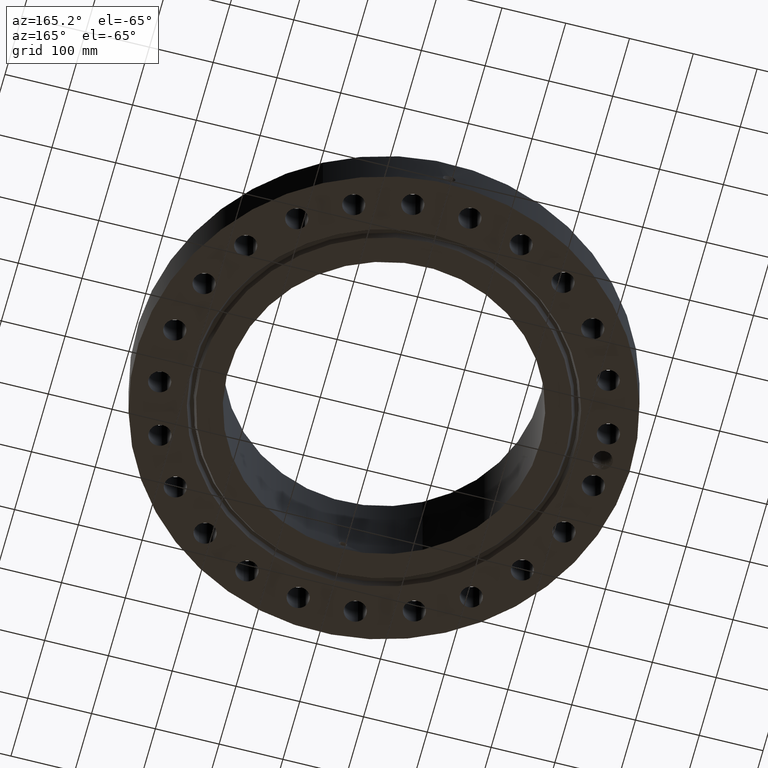
[diagram: clean part render]
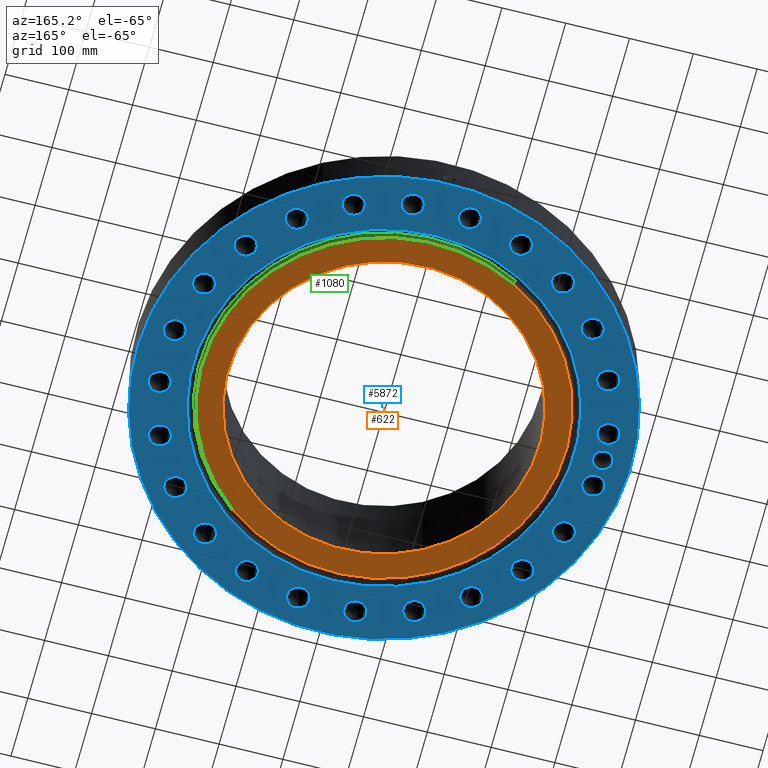
[diagram: same view with three faces highlighted in distinct colors, each labeled with its STEP entity id]
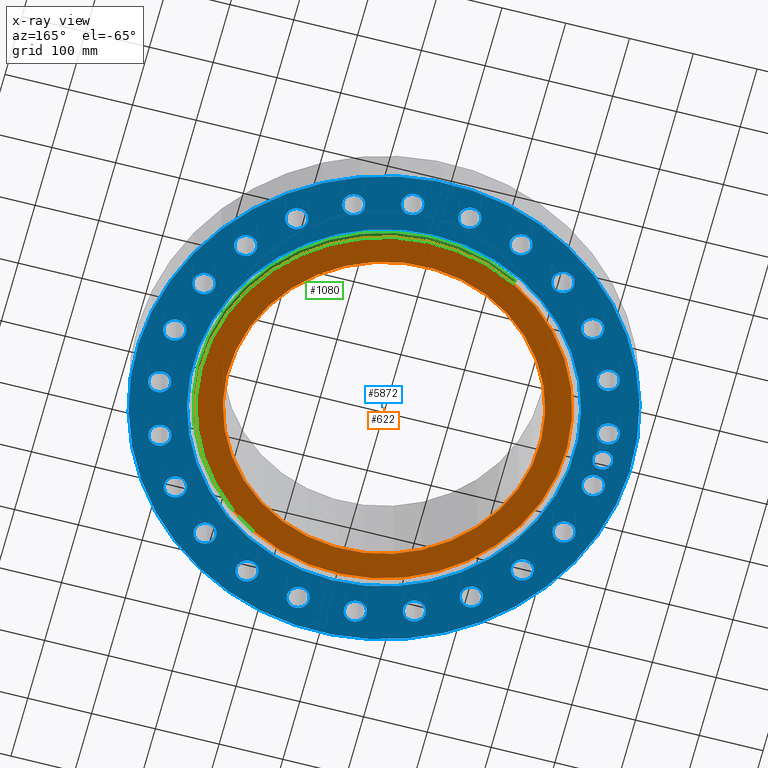
[diagram: x-ray of the same camera — body ghosted, the three highlighted faces saturated]
A machine part, auxiliary view with three faces highlighted in distinct colors.
The next image is the same camera in x-ray (body ghosted, the three faces saturated) — at least one of them is partly hidden behind the body in this view.
Their STEP definitions:

[orange] entity #622 — the highlighted planar face has unit normal (0, 0, -1).
#252=AXIS2_PLACEMENT_3D('Circle Axis2P3D',#250,#251,$) ;
#543=AXIS2_PLACEMENT_3D('Circle Axis2P3D',#541,#542,$) ;
#598=AXIS2_PLACEMENT_3D('Plane Axis2P3D',#595,#596,#597) ;
#602=AXIS2_PLACEMENT_3D('Circle Axis2P3D',#600,#601,$) ;
#611=AXIS2_PLACEMENT_3D('Circle Axis2P3D',#609,#610,$) ;
#247=CARTESIAN_POINT('Vertex',(4.61447080908,8.44673215823,-5.87456592558E-014)) ;
#250=CARTESIAN_POINT('Axis2P3D Location',(0.,0.,-6.04241066631E-014)) ;
#254=CARTESIAN_POINT('Vertex',(-4.61447080908,-8.44673215823,-5.87456592558E-014)) ;
#541=CARTESIAN_POINT('Axis2P3D Location',(0.,0.,-6.04241066631E-014)) ;
#595=CARTESIAN_POINT('Axis2P3D Location',(0.,9.62500000004,0.)) ;
#600=CARTESIAN_POINT('Axis2P3D Location',(-1.1189649382E-015,0.,0.)) ;
#604=CARTESIAN_POINT('Vertex',(-5.38610621347,9.8592012916,0.)) ;
#606=CARTESIAN_POINT('Vertex',(5.38610621347,-9.8592012916,4.19611851827E-016)) ;
#609=CARTESIAN_POINT('Axis2P3D Location',(4.47585975282E-015,0.,0.)) ;
#251=DIRECTION('Axis2P3D Direction',(0.,0.,-0.0393700787402)) ;
#542=DIRECTION('Axis2P3D Direction',(0.,0.,-0.0393700787402)) ;
#596=DIRECTION('Axis2P3D Direction',(0.,0.,-0.0393700787402)) ;
#597=DIRECTION('Axis2P3D XDirection',(0.0393700787402,0.,0.)) ;
#601=DIRECTION('Axis2P3D Direction',(0.,0.,-0.0393700787402)) ;
#610=DIRECTION('Axis2P3D Direction',(0.,0.,-0.0393700787402)) ;
#615=ORIENTED_EDGE('',*,*,#608,.T.) ;
#616=ORIENTED_EDGE('',*,*,#613,.T.) ;
#619=ORIENTED_EDGE('',*,*,#256,.F.) ;
#620=ORIENTED_EDGE('',*,*,#545,.F.) ;
#621=FACE_BOUND('',#618,.T.) ;
#622=ADVANCED_FACE('PartBody',(#617,#621),#599,.T.) ;
#253=CIRCLE('generated circle',#252,9.62500000004) ;
#544=CIRCLE('generated circle',#543,9.62500000004) ;
#603=CIRCLE('generated circle',#602,11.2345) ;
#612=CIRCLE('generated circle',#611,11.2345) ;
#256=EDGE_CURVE('',#248,#255,#253,.T.) ;
#545=EDGE_CURVE('',#255,#248,#544,.T.) ;
#608=EDGE_CURVE('',#605,#607,#603,.T.) ;
#613=EDGE_CURVE('',#607,#605,#612,.T.) ;
#614=EDGE_LOOP('',(#615,#616)) ;
#618=EDGE_LOOP('',(#619,#620)) ;
#617=FACE_OUTER_BOUND('',#614,.T.) ;
#599=PLANE('',#598) ;
#248=VERTEX_POINT('',#247) ;
#255=VERTEX_POINT('',#254) ;
#605=VERTEX_POINT('',#604) ;
#607=VERTEX_POINT('',#606) ;

[blue] entity #5872 — the highlighted planar face has unit normal (0, 0, -1).
#598=AXIS2_PLACEMENT_3D('Plane Axis2P3D',#595,#596,#597) ;
#3761=AXIS2_PLACEMENT_3D('Circle Axis2P3D',#3759,#3760,$) ;
#3787=AXIS2_PLACEMENT_3D('Circle Axis2P3D',#3785,#3786,$) ;
#4060=AXIS2_PLACEMENT_3D('Circle Axis2P3D',#4058,#4059,$) ;
#4173=AXIS2_PLACEMENT_3D('Circle Axis2P3D',#4171,#4172,$) ;
#4415=AXIS2_PLACEMENT_3D('Circle Axis2P3D',#4413,#4414,$) ;
#4434=AXIS2_PLACEMENT_3D('Circle Axis2P3D',#4432,#4433,$) ;
#4458=AXIS2_PLACEMENT_3D('Circle Axis2P3D',#4456,#4457,$) ;
#4477=AXIS2_PLACEMENT_3D('Circle Axis2P3D',#4475,#4476,$) ;
#4501=AXIS2_PLACEMENT_3D('Circle Axis2P3D',#4499,#4500,$) ;
#4520=AXIS2_PLACEMENT_3D('Circle Axis2P3D',#4518,#4519,$) ;
#4544=AXIS2_PLACEMENT_3D('Circle Axis2P3D',#4542,#4543,$) ;
#4563=AXIS2_PLACEMENT_3D('Circle Axis2P3D',#4561,#4562,$) ;
#4587=AXIS2_PLACEMENT_3D('Circle Axis2P3D',#4585,#4586,$) ;
#4606=AXIS2_PLACEMENT_3D('Circle Axis2P3D',#4604,#4605,$) ;
#4630=AXIS2_PLACEMENT_3D('Circle Axis2P3D',#4628,#4629,$) ;
#4649=AXIS2_PLACEMENT_3D('Circle Axis2P3D',#4647,#4648,$) ;
#4673=AXIS2_PLACEMENT_3D('Circle Axis2P3D',#4671,#4672,$) ;
#4692=AXIS2_PLACEMENT_3D('Circle Axis2P3D',#4690,#4691,$) ;
#4716=AXIS2_PLACEMENT_3D('Circle Axis2P3D',#4714,#4715,$) ;
#4735=AXIS2_PLACEMENT_3D('Circle Axis2P3D',#4733,#4734,$) ;
#4759=AXIS2_PLACEMENT_3D('Circle Axis2P3D',#4757,#4758,$) ;
#4778=AXIS2_PLACEMENT_3D('Circle Axis2P3D',#4776,#4777,$) ;
#4802=AXIS2_PLACEMENT_3D('Circle Axis2P3D',#4800,#4801,$) ;
#4821=AXIS2_PLACEMENT_3D('Circle Axis2P3D',#4819,#4820,$) ;
#4845=AXIS2_PLACEMENT_3D('Circle Axis2P3D',#4843,#4844,$) ;
#4864=AXIS2_PLACEMENT_3D('Circle Axis2P3D',#4862,#4863,$) ;
#4888=AXIS2_PLACEMENT_3D('Circle Axis2P3D',#4886,#4887,$) ;
#4907=AXIS2_PLACEMENT_3D('Circle Axis2P3D',#4905,#4906,$) ;
#4931=AXIS2_PLACEMENT_3D('Circle Axis2P3D',#4929,#4930,$) ;
#4950=AXIS2_PLACEMENT_3D('Circle Axis2P3D',#4948,#4949,$) ;
#4974=AXIS2_PLACEMENT_3D('Circle Axis2P3D',#4972,#4973,$) ;
#4993=AXIS2_PLACEMENT_3D('Circle Axis2P3D',#4991,#4992,$) ;
#5017=AXIS2_PLACEMENT_3D('Circle Axis2P3D',#5015,#5016,$) ;
#5036=AXIS2_PLACEMENT_3D('Circle Axis2P3D',#5034,#5035,$) ;
#5060=AXIS2_PLACEMENT_3D('Circle Axis2P3D',#5058,#5059,$) ;
#5079=AXIS2_PLACEMENT_3D('Circle Axis2P3D',#5077,#5078,$) ;
#5103=AXIS2_PLACEMENT_3D('Circle Axis2P3D',#5101,#5102,$) ;
#5122=AXIS2_PLACEMENT_3D('Circle Axis2P3D',#5120,#5121,$) ;
#5146=AXIS2_PLACEMENT_3D('Circle Axis2P3D',#5144,#5145,$) ;
#5165=AXIS2_PLACEMENT_3D('Circle Axis2P3D',#5163,#5164,$) ;
#5189=AXIS2_PLACEMENT_3D('Circle Axis2P3D',#5187,#5188,$) ;
#5208=AXIS2_PLACEMENT_3D('Circle Axis2P3D',#5206,#5207,$) ;
#5232=AXIS2_PLACEMENT_3D('Circle Axis2P3D',#5230,#5231,$) ;
#5251=AXIS2_PLACEMENT_3D('Circle Axis2P3D',#5249,#5250,$) ;
#5275=AXIS2_PLACEMENT_3D('Circle Axis2P3D',#5273,#5274,$) ;
#5294=AXIS2_PLACEMENT_3D('Circle Axis2P3D',#5292,#5293,$) ;
#5318=AXIS2_PLACEMENT_3D('Circle Axis2P3D',#5316,#5317,$) ;
#5337=AXIS2_PLACEMENT_3D('Circle Axis2P3D',#5335,#5336,$) ;
#5361=AXIS2_PLACEMENT_3D('Circle Axis2P3D',#5359,#5360,$) ;
#5380=AXIS2_PLACEMENT_3D('Circle Axis2P3D',#5378,#5379,$) ;
#5404=AXIS2_PLACEMENT_3D('Circle Axis2P3D',#5402,#5403,$) ;
#5423=AXIS2_PLACEMENT_3D('Circle Axis2P3D',#5421,#5422,$) ;
#5734=AXIS2_PLACEMENT_3D('Circle Axis2P3D',#5732,#5733,$) ;
#5743=AXIS2_PLACEMENT_3D('Circle Axis2P3D',#5741,#5742,$) ;
#595=CARTESIAN_POINT('Axis2P3D Location',(0.,9.62500000004,0.)) ;
#3759=CARTESIAN_POINT('Axis2P3D Location',(0.,0.,0.)) ;
#3763=CARTESIAN_POINT('Vertex',(-5.64068117447,10.325197632,0.)) ;
#3765=CARTESIAN_POINT('Vertex',(5.64068117447,-10.325197632,-2.79741234551E-016)) ;
#3785=CARTESIAN_POINT('Axis2P3D Location',(0.,0.,0.)) ;
#4058=CARTESIAN_POINT('Axis2P3D Location',(0.,0.,1.67844740731E-015)) ;
#4062=CARTESIAN_POINT('Vertex',(-7.31123946374,-13.3831340689,1.67844740731E-015)) ;
#4064=CARTESIAN_POINT('Vertex',(7.31123946374,13.3831340689,1.67844740731E-015)) ;
#4171=CARTESIAN_POINT('Axis2P3D Location',(0.,0.,1.67844740731E-015)) ;
#4410=CARTESIAN_POINT('Vertex',(13.9900375963,-2.09290721662,0.)) ;
#4413=CARTESIAN_POINT('Axis2P3D Location',(13.3845056286,-1.76210359498,0.)) ;
#4417=CARTESIAN_POINT('Vertex',(12.7789736609,-1.43129997334,0.)) ;
#4432=CARTESIAN_POINT('Axis2P3D Location',(13.3845056286,-1.76210359498,0.)) ;
#4453=CARTESIAN_POINT('Vertex',(11.9730930002,-4.68997136972,0.)) ;
#4456=CARTESIAN_POINT('Axis2P3D Location',(12.472373689,-5.16622633695,0.)) ;
#4460=CARTESIAN_POINT('Vertex',(12.9716543777,-5.64248130418,0.)) ;
#4475=CARTESIAN_POINT('Axis2P3D Location',(12.472373689,-5.16622633695,0.)) ;
#4496=CARTESIAN_POINT('Vertex',(10.351265838,-7.62902896779,0.)) ;
#4499=CARTESIAN_POINT('Axis2P3D Location',(10.710270094,-8.21827929165,0.)) ;
#4503=CARTESIAN_POINT('Vertex',(11.06927435,-8.80752961551,0.)) ;
#4518=CARTESIAN_POINT('Axis2P3D Location',(10.710270094,-8.21827929165,0.)) ;
#4539=CARTESIAN_POINT('Vertex',(8.02401701516,-10.0481808493,0.)) ;
#4542=CARTESIAN_POINT('Axis2P3D Location',(8.21827929165,-10.710270094,0.)) ;
#4546=CARTESIAN_POINT('Vertex',(8.41254156814,-11.3723593387,0.)) ;
#4561=CARTESIAN_POINT('Axis2P3D Location',(8.21827929165,-10.710270094,0.)) ;
#4582=CARTESIAN_POINT('Vertex',(5.1499446931,-11.7825658113,0.)) ;
#4585=CARTESIAN_POINT('Axis2P3D Location',(5.16622633695,-12.472373689,0.)) ;
#4589=CARTESIAN_POINT('Vertex',(5.1825079808,-13.1621815666,0.)) ;
#4604=CARTESIAN_POINT('Axis2P3D Location',(5.16622633695,-12.472373689,0.)) ;
#4625=CARTESIAN_POINT('Vertex',(1.92491215089,-12.7139883849,0.)) ;
#4628=CARTESIAN_POINT('Axis2P3D Location',(1.76210359498,-13.3845056286,0.)) ;
#4632=CARTESIAN_POINT('Vertex',(1.59929503907,-14.0550228723,0.)) ;
#4647=CARTESIAN_POINT('Axis2P3D Location',(1.76210359498,-13.3845056286,0.)) ;
#4668=CARTESIAN_POINT('Vertex',(-1.43129997334,-12.7789736609,0.)) ;
#4671=CARTESIAN_POINT('Axis2P3D Location',(-1.76210359498,-13.3845056286,0.)) ;
#4675=CARTESIAN_POINT('Vertex',(-2.09290721662,-13.9900375963,0.)) ;
#4690=CARTESIAN_POINT('Axis2P3D Location',(-1.76210359498,-13.3845056286,0.)) ;
#4711=CARTESIAN_POINT('Vertex',(-4.68997136972,-11.9730930002,0.)) ;
#4714=CARTESIAN_POINT('Axis2P3D Location',(-5.16622633695,-12.472373689,-1.1189649382E-015)) ;
#4718=CARTESIAN_POINT('Vertex',(-5.64248130418,-12.9716543777,-1.1189649382E-015)) ;
#4733=CARTESIAN_POINT('Axis2P3D Location',(-5.16622633695,-12.472373689,-1.1189649382E-015)) ;
#4754=CARTESIAN_POINT('Vertex',(-7.62902896779,-10.351265838,0.)) ;
#4757=CARTESIAN_POINT('Axis2P3D Location',(-8.21827929165,-10.710270094,-2.23792987641E-015)) ;
#4761=CARTESIAN_POINT('Vertex',(-8.80752961551,-11.06927435,-2.23792987641E-015)) ;
#4776=CARTESIAN_POINT('Axis2P3D Location',(-8.21827929165,-10.710270094,-2.23792987641E-015)) ;
#4797=CARTESIAN_POINT('Vertex',(-10.0481808493,-8.02401701516,0.)) ;
#4800=CARTESIAN_POINT('Axis2P3D Location',(-10.710270094,-8.21827929165,0.)) ;
#4804=CARTESIAN_POINT('Vertex',(-11.3723593387,-8.41254156814,0.)) ;
#4819=CARTESIAN_POINT('Axis2P3D Location',(-10.710270094,-8.21827929165,0.)) ;
#4840=CARTESIAN_POINT('Vertex',(-11.7825658113,-5.1499446931,0.)) ;
#4843=CARTESIAN_POINT('Axis2P3D Location',(-12.472373689,-5.16622633695,0.)) ;
#4847=CARTESIAN_POINT('Vertex',(-13.1621815666,-5.1825079808,0.)) ;
#4862=CARTESIAN_POINT('Axis2P3D Location',(-12.472373689,-5.16622633695,0.)) ;
#4883=CARTESIAN_POINT('Vertex',(-12.7139883849,-1.92491215089,0.)) ;
#4886=CARTESIAN_POINT('Axis2P3D Location',(-13.3845056286,-1.76210359498,0.)) ;
#4890=CARTESIAN_POINT('Vertex',(-14.0550228723,-1.59929503907,0.)) ;
#4905=CARTESIAN_POINT('Axis2P3D Location',(-13.3845056286,-1.76210359498,0.)) ;
#4926=CARTESIAN_POINT('Vertex',(-12.7789736609,1.43129997334,0.)) ;
#4929=CARTESIAN_POINT('Axis2P3D Location',(-13.3845056286,1.76210359498,0.)) ;
#4933=CARTESIAN_POINT('Vertex',(-13.9900375963,2.09290721662,0.)) ;
#4948=CARTESIAN_POINT('Axis2P3D Location',(-13.3845056286,1.76210359498,0.)) ;
#4969=CARTESIAN_POINT('Vertex',(-11.9730930002,4.68997136972,0.)) ;
#4972=CARTESIAN_POINT('Axis2P3D Location',(-12.472373689,5.16622633695,0.)) ;
#4976=CARTESIAN_POINT('Vertex',(-12.9716543777,5.64248130418,0.)) ;
#4991=CARTESIAN_POINT('Axis2P3D Location',(-12.472373689,5.16622633695,0.)) ;
#5012=CARTESIAN_POINT('Vertex',(-10.351265838,7.62902896779,0.)) ;
#5015=CARTESIAN_POINT('Axis2P3D Location',(-10.710270094,8.21827929165,0.)) ;
#5019=CARTESIAN_POINT('Vertex',(-11.06927435,8.80752961551,0.)) ;
#5034=CARTESIAN_POINT('Axis2P3D Location',(-10.710270094,8.21827929165,0.)) ;
#5055=CARTESIAN_POINT('Vertex',(-8.02401701516,10.0481808493,0.)) ;
#5058=CARTESIAN_POINT('Axis2P3D Location',(-8.21827929165,10.710270094,0.)) ;
#5062=CARTESIAN_POINT('Vertex',(-8.41254156814,11.3723593387,0.)) ;
#5077=CARTESIAN_POINT('Axis2P3D Location',(-8.21827929165,10.710270094,0.)) ;
#5098=CARTESIAN_POINT('Vertex',(-5.1499446931,11.7825658113,0.)) ;
#5101=CARTESIAN_POINT('Axis2P3D Location',(-5.16622633695,12.472373689,0.)) ;
#5105=CARTESIAN_POINT('Vertex',(-5.1825079808,13.1621815666,0.)) ;
#5120=CARTESIAN_POINT('Axis2P3D Location',(-5.16622633695,12.472373689,0.)) ;
#5141=CARTESIAN_POINT('Vertex',(-1.92491215089,12.7139883849,0.)) ;
#5144=CARTESIAN_POINT('Axis2P3D Location',(-1.76210359498,13.3845056286,0.)) ;
#5148=CARTESIAN_POINT('Vertex',(-1.59929503907,14.0550228723,0.)) ;
#5163=CARTESIAN_POINT('Axis2P3D Location',(-1.76210359498,13.3845056286,0.)) ;
#5184=CARTESIAN_POINT('Vertex',(1.43129997334,12.7789736609,0.)) ;
#5187=CARTESIAN_POINT('Axis2P3D Location',(1.76210359498,13.3845056286,0.)) ;
#5191=CARTESIAN_POINT('Vertex',(2.09290721662,13.9900375963,0.)) ;
#5206=CARTESIAN_POINT('Axis2P3D Location',(1.76210359498,13.3845056286,0.)) ;
#5227=CARTESIAN_POINT('Vertex',(4.68997136972,11.9730930002,0.)) ;
#5230=CARTESIAN_POINT('Axis2P3D Location',(5.16622633695,12.472373689,0.)) ;
#5234=CARTESIAN_POINT('Vertex',(5.64248130418,12.9716543777,0.)) ;
#5249=CARTESIAN_POINT('Axis2P3D Location',(5.16622633695,12.472373689,0.)) ;
#5270=CARTESIAN_POINT('Vertex',(7.62902896779,10.351265838,0.)) ;
#5273=CARTESIAN_POINT('Axis2P3D Location',(8.21827929165,10.710270094,0.)) ;
#5277=CARTESIAN_POINT('Vertex',(8.80752961551,11.06927435,0.)) ;
#5292=CARTESIAN_POINT('Axis2P3D Location',(8.21827929165,10.710270094,0.)) ;
#5313=CARTESIAN_POINT('Vertex',(10.0481808493,8.02401701516,0.)) ;
#5316=CARTESIAN_POINT('Axis2P3D Location',(10.710270094,8.21827929165,0.)) ;
#5320=CARTESIAN_POINT('Vertex',(11.3723593387,8.41254156814,0.)) ;
#5335=CARTESIAN_POINT('Axis2P3D Location',(10.710270094,8.21827929165,0.)) ;
#5356=CARTESIAN_POINT('Vertex',(11.7825658113,5.1499446931,0.)) ;
#5359=CARTESIAN_POINT('Axis2P3D Location',(12.472373689,5.16622633695,0.)) ;
#5363=CARTESIAN_POINT('Vertex',(13.1621815666,5.1825079808,0.)) ;
#5378=CARTESIAN_POINT('Axis2P3D Location',(12.472373689,5.16622633695,0.)) ;
#5399=CARTESIAN_POINT('Vertex',(12.7139883849,1.92491215089,0.)) ;
#5402=CARTESIAN_POINT('Axis2P3D Location',(13.3845056286,1.76210359498,0.)) ;
#5406=CARTESIAN_POINT('Vertex',(14.0550228723,1.59929503907,0.)) ;
#5421=CARTESIAN_POINT('Axis2P3D Location',(13.3845056286,1.76210359498,0.)) ;
#5732=CARTESIAN_POINT('Axis2P3D Location',(-13.5000000001,-1.1189649382E-015,0.)) ;
#5736=CARTESIAN_POINT('Vertex',(-14.039441225,0.294698084326,0.)) ;
#5738=CARTESIAN_POINT('Vertex',(-12.9181593071,-0.198255401346,0.)) ;
#5741=CARTESIAN_POINT('Axis2P3D Location',(-13.5000000001,-1.1189649382E-015,0.)) ;
#5745=CARTESIAN_POINT('Vertex',(-13.298720049,-0.580801323508,0.)) ;
#5749=CARTESIAN_POINT('Control Point',(-13.0568984392,-0.440789072689,0.)) ;
#5750=CARTESIAN_POINT('Control Point',(-13.0982490891,-0.479435590973,0.)) ;
#5751=CARTESIAN_POINT('Control Point',(-13.1438876534,-0.513316141088,0.)) ;
#5752=CARTESIAN_POINT('Control Point',(-13.1931017187,-0.541793635752,0.)) ;
#5753=CARTESIAN_POINT('Control Point',(-13.24502165,-0.564380535557,0.)) ;
#5754=CARTESIAN_POINT('Control Point',(-13.298720049,-0.580801323508,0.)) ;
#5755=CARTESIAN_POINT('Vertex',(-13.0568984392,-0.440789072716,-3.2782175924E-018)) ;
#5759=CARTESIAN_POINT('Control Point',(-13.0568984392,-0.440789072716,0.)) ;
#5760=CARTESIAN_POINT('Control Point',(-13.0184943845,-0.399278921201,0.)) ;
#5761=CARTESIAN_POINT('Control Point',(-12.9848545759,-0.353494717521,0.)) ;
#5762=CARTESIAN_POINT('Control Point',(-12.9566249669,-0.304140809745,0.)) ;
#5763=CARTESIAN_POINT('Control Point',(-12.9343016257,-0.252080734861,0.)) ;
#5764=CARTESIAN_POINT('Control Point',(-12.9181593071,-0.198255401346,0.)) ;
#596=DIRECTION('Axis2P3D Direction',(0.,0.,-0.0393700787402)) ;
#597=DIRECTION('Axis2P3D XDirection',(0.0393700787402,0.,0.)) ;
#3760=DIRECTION('Axis2P3D Direction',(0.,0.,-0.0393700787402)) ;
#3786=DIRECTION('Axis2P3D Direction',(0.,0.,-0.0393700787402)) ;
#4059=DIRECTION('Axis2P3D Direction',(0.,0.,-0.0393700787402)) ;
#4172=DIRECTION('Axis2P3D Direction',(0.,0.,-0.0393700787402)) ;
#4414=DIRECTION('Axis2P3D Direction',(0.,-0.,-0.0393700787402)) ;
#4433=DIRECTION('Axis2P3D Direction',(0.,-0.,-0.0393700787402)) ;
#4457=DIRECTION('Axis2P3D Direction',(0.,-0.,-0.0393700787402)) ;
#4476=DIRECTION('Axis2P3D Direction',(0.,-0.,-0.0393700787402)) ;
#4500=DIRECTION('Axis2P3D Direction',(0.,-0.,-0.0393700787402)) ;
#4519=DIRECTION('Axis2P3D Direction',(0.,-0.,-0.0393700787402)) ;
#4543=DIRECTION('Axis2P3D Direction',(0.,-0.,-0.0393700787402)) ;
#4562=DIRECTION('Axis2P3D Direction',(0.,-0.,-0.0393700787402)) ;
#4586=DIRECTION('Axis2P3D Direction',(0.,-0.,-0.0393700787402)) ;
#4605=DIRECTION('Axis2P3D Direction',(0.,-0.,-0.0393700787402)) ;
#4629=DIRECTION('Axis2P3D Direction',(0.,-0.,-0.0393700787402)) ;
#4648=DIRECTION('Axis2P3D Direction',(0.,-0.,-0.0393700787402)) ;
#4672=DIRECTION('Axis2P3D Direction',(0.,-0.,-0.0393700787402)) ;
#4691=DIRECTION('Axis2P3D Direction',(0.,-0.,-0.0393700787402)) ;
#4715=DIRECTION('Axis2P3D Direction',(-0.,0.,-0.0393700787402)) ;
#4734=DIRECTION('Axis2P3D Direction',(-0.,0.,-0.0393700787402)) ;
#4758=DIRECTION('Axis2P3D Direction',(-0.,0.,-0.0393700787402)) ;
#4777=DIRECTION('Axis2P3D Direction',(-0.,0.,-0.0393700787402)) ;
#4801=DIRECTION('Axis2P3D Direction',(-0.,0.,-0.0393700787402)) ;
#4820=DIRECTION('Axis2P3D Direction',(-0.,0.,-0.0393700787402)) ;
#4844=DIRECTION('Axis2P3D Direction',(-0.,0.,-0.0393700787402)) ;
#4863=DIRECTION('Axis2P3D Direction',(-0.,0.,-0.0393700787402)) ;
#4887=DIRECTION('Axis2P3D Direction',(-0.,0.,-0.0393700787402)) ;
#4906=DIRECTION('Axis2P3D Direction',(-0.,0.,-0.0393700787402)) ;
#4930=DIRECTION('Axis2P3D Direction',(-0.,0.,-0.0393700787402)) ;
#4949=DIRECTION('Axis2P3D Direction',(-0.,0.,-0.0393700787402)) ;
#4973=DIRECTION('Axis2P3D Direction',(0.,0.,-0.0393700787402)) ;
#4992=DIRECTION('Axis2P3D Direction',(0.,0.,-0.0393700787402)) ;
#5016=DIRECTION('Axis2P3D Direction',(0.,0.,-0.0393700787402)) ;
#5035=DIRECTION('Axis2P3D Direction',(0.,0.,-0.0393700787402)) ;
#5059=DIRECTION('Axis2P3D Direction',(0.,0.,-0.0393700787402)) ;
#5078=DIRECTION('Axis2P3D Direction',(0.,0.,-0.0393700787402)) ;
#5102=DIRECTION('Axis2P3D Direction',(0.,0.,-0.0393700787402)) ;
#5121=DIRECTION('Axis2P3D Direction',(0.,0.,-0.0393700787402)) ;
#5145=DIRECTION('Axis2P3D Direction',(0.,0.,-0.0393700787402)) ;
#5164=DIRECTION('Axis2P3D Direction',(0.,0.,-0.0393700787402)) ;
#5188=DIRECTION('Axis2P3D Direction',(0.,0.,-0.0393700787402)) ;
#5207=DIRECTION('Axis2P3D Direction',(0.,0.,-0.0393700787402)) ;
#5231=DIRECTION('Axis2P3D Direction',(0.,0.,-0.0393700787402)) ;
#5250=DIRECTION('Axis2P3D Direction',(0.,0.,-0.0393700787402)) ;
#5274=DIRECTION('Axis2P3D Direction',(0.,0.,-0.0393700787402)) ;
#5293=DIRECTION('Axis2P3D Direction',(0.,0.,-0.0393700787402)) ;
#5317=DIRECTION('Axis2P3D Direction',(0.,0.,-0.0393700787402)) ;
#5336=DIRECTION('Axis2P3D Direction',(0.,0.,-0.0393700787402)) ;
#5360=DIRECTION('Axis2P3D Direction',(0.,0.,-0.0393700787402)) ;
#5379=DIRECTION('Axis2P3D Direction',(0.,0.,-0.0393700787402)) ;
#5403=DIRECTION('Axis2P3D Direction',(0.,0.,-0.0393700787402)) ;
#5422=DIRECTION('Axis2P3D Direction',(0.,0.,-0.0393700787402)) ;
#5733=DIRECTION('Axis2P3D Direction',(0.,0.,-0.0393700787402)) ;
#5742=DIRECTION('Axis2P3D Direction',(0.,0.,-0.0393700787402)) ;
#5729=ORIENTED_EDGE('',*,*,#4066,.T.) ;
#5730=ORIENTED_EDGE('',*,*,#4175,.T.) ;
#5767=ORIENTED_EDGE('',*,*,#5740,.F.) ;
#5768=ORIENTED_EDGE('',*,*,#5747,.F.) ;
#5769=ORIENTED_EDGE('',*,*,#5757,.F.) ;
#5770=ORIENTED_EDGE('',*,*,#5765,.T.) ;
#5773=ORIENTED_EDGE('',*,*,#4419,.F.) ;
#5774=ORIENTED_EDGE('',*,*,#4436,.F.) ;
#5777=ORIENTED_EDGE('',*,*,#4462,.F.) ;
#5778=ORIENTED_EDGE('',*,*,#4479,.F.) ;
#5781=ORIENTED_EDGE('',*,*,#4505,.F.) ;
#5782=ORIENTED_EDGE('',*,*,#4522,.F.) ;
#5785=ORIENTED_EDGE('',*,*,#4548,.F.) ;
#5786=ORIENTED_EDGE('',*,*,#4565,.F.) ;
#5789=ORIENTED_EDGE('',*,*,#4591,.F.) ;
#5790=ORIENTED_EDGE('',*,*,#4608,.F.) ;
#5793=ORIENTED_EDGE('',*,*,#4634,.F.) ;
#5794=ORIENTED_EDGE('',*,*,#4651,.F.) ;
#5797=ORIENTED_EDGE('',*,*,#4677,.F.) ;
#5798=ORIENTED_EDGE('',*,*,#4694,.F.) ;
#5801=ORIENTED_EDGE('',*,*,#4720,.F.) ;
#5802=ORIENTED_EDGE('',*,*,#4737,.F.) ;
#5805=ORIENTED_EDGE('',*,*,#4763,.F.) ;
#5806=ORIENTED_EDGE('',*,*,#4780,.F.) ;
#5809=ORIENTED_EDGE('',*,*,#4806,.F.) ;
#5810=ORIENTED_EDGE('',*,*,#4823,.F.) ;
#5813=ORIENTED_EDGE('',*,*,#4849,.F.) ;
#5814=ORIENTED_EDGE('',*,*,#4866,.F.) ;
#5817=ORIENTED_EDGE('',*,*,#4892,.F.) ;
#5818=ORIENTED_EDGE('',*,*,#4909,.F.) ;
#5821=ORIENTED_EDGE('',*,*,#4935,.F.) ;
#5822=ORIENTED_EDGE('',*,*,#4952,.F.) ;
#5825=ORIENTED_EDGE('',*,*,#4978,.F.) ;
#5826=ORIENTED_EDGE('',*,*,#4995,.F.) ;
#5829=ORIENTED_EDGE('',*,*,#5021,.F.) ;
#5830=ORIENTED_EDGE('',*,*,#5038,.F.) ;
#5833=ORIENTED_EDGE('',*,*,#5064,.F.) ;
#5834=ORIENTED_EDGE('',*,*,#5081,.F.) ;
#5837=ORIENTED_EDGE('',*,*,#5107,.F.) ;
#5838=ORIENTED_EDGE('',*,*,#5124,.F.) ;
#5841=ORIENTED_EDGE('',*,*,#5150,.F.) ;
#5842=ORIENTED_EDGE('',*,*,#5167,.F.) ;
#5845=ORIENTED_EDGE('',*,*,#5193,.F.) ;
#5846=ORIENTED_EDGE('',*,*,#5210,.F.) ;
#5849=ORIENTED_EDGE('',*,*,#5236,.F.) ;
#5850=ORIENTED_EDGE('',*,*,#5253,.F.) ;
#5853=ORIENTED_EDGE('',*,*,#5279,.F.) ;
#5854=ORIENTED_EDGE('',*,*,#5296,.F.) ;
#5857=ORIENTED_EDGE('',*,*,#5322,.F.) ;
#5858=ORIENTED_EDGE('',*,*,#5339,.F.) ;
#5861=ORIENTED_EDGE('',*,*,#5365,.F.) ;
#5862=ORIENTED_EDGE('',*,*,#5382,.F.) ;
#5865=ORIENTED_EDGE('',*,*,#5408,.F.) ;
#5866=ORIENTED_EDGE('',*,*,#5425,.F.) ;
#5869=ORIENTED_EDGE('',*,*,#3789,.F.) ;
#5870=ORIENTED_EDGE('',*,*,#3767,.F.) ;
#5771=FACE_BOUND('',#5766,.T.) ;
#5775=FACE_BOUND('',#5772,.T.) ;
#5779=FACE_BOUND('',#5776,.T.) ;
#5783=FACE_BOUND('',#5780,.T.) ;
#5787=FACE_BOUND('',#5784,.T.) ;
#5791=FACE_BOUND('',#5788,.T.) ;
#5795=FACE_BOUND('',#5792,.T.) ;
#5799=FACE_BOUND('',#5796,.T.) ;
#5803=FACE_BOUND('',#5800,.T.) ;
#5807=FACE_BOUND('',#5804,.T.) ;
#5811=FACE_BOUND('',#5808,.T.) ;
#5815=FACE_BOUND('',#5812,.T.) ;
#5819=FACE_BOUND('',#5816,.T.) ;
#5823=FACE_BOUND('',#5820,.T.) ;
#5827=FACE_BOUND('',#5824,.T.) ;
#5831=FACE_BOUND('',#5828,.T.) ;
#5835=FACE_BOUND('',#5832,.T.) ;
#5839=FACE_BOUND('',#5836,.T.) ;
#5843=FACE_BOUND('',#5840,.T.) ;
#5847=FACE_BOUND('',#5844,.T.) ;
#5851=FACE_BOUND('',#5848,.T.) ;
#5855=FACE_BOUND('',#5852,.T.) ;
#5859=FACE_BOUND('',#5856,.T.) ;
#5863=FACE_BOUND('',#5860,.T.) ;
#5867=FACE_BOUND('',#5864,.T.) ;
#5871=FACE_BOUND('',#5868,.T.) ;
#5872=ADVANCED_FACE('PartBody',(#5731,#5771,#5775,#5779,#5783,#5787,#5791,#5795,#5799,#5803,#5807,#5811,#5815,#5819,#5823,#5827,#5831,#5835,#5839,#5843,#5847,#5851,#5855,#5859,#5863,#5867,#5871),#599,.T.) ;
#5748=B_SPLINE_CURVE_WITH_KNOTS('',5,(#5749,#5750,#5751,#5752,#5753,#5754),.UNSPECIFIED.,.F.,.U.,(6,6),(0.,9.91469531227),.UNSPECIFIED.) ;
#5758=B_SPLINE_CURVE_WITH_KNOTS('',5,(#5759,#5760,#5761,#5762,#5763,#5764),.UNSPECIFIED.,.F.,.U.,(6,6),(0.,9.90626323053),.UNSPECIFIED.) ;
#3762=CIRCLE('generated circle',#3761,11.7655) ;
#3788=CIRCLE('generated circle',#3787,11.7655) ;
#4061=CIRCLE('generated circle',#4060,15.2500000001) ;
#4174=CIRCLE('generated circle',#4173,15.2500000001) ;
#4416=CIRCLE('generated circle',#4415,0.690000000003) ;
#4435=CIRCLE('generated circle',#4434,0.690000000003) ;
#4459=CIRCLE('generated circle',#4458,0.690000000003) ;
#4478=CIRCLE('generated circle',#4477,0.690000000003) ;
#4502=CIRCLE('generated circle',#4501,0.690000000003) ;
#4521=CIRCLE('generated circle',#4520,0.690000000003) ;
#4545=CIRCLE('generated circle',#4544,0.690000000003) ;
#4564=CIRCLE('generated circle',#4563,0.690000000003) ;
#4588=CIRCLE('generated circle',#4587,0.690000000003) ;
#4607=CIRCLE('generated circle',#4606,0.690000000003) ;
#4631=CIRCLE('generated circle',#4630,0.690000000003) ;
#4650=CIRCLE('generated circle',#4649,0.690000000003) ;
#4674=CIRCLE('generated circle',#4673,0.690000000003) ;
#4693=CIRCLE('generated circle',#4692,0.690000000003) ;
#4717=CIRCLE('generated circle',#4716,0.690000000003) ;
#4736=CIRCLE('generated circle',#4735,0.690000000003) ;
#4760=CIRCLE('generated circle',#4759,0.690000000003) ;
#4779=CIRCLE('generated circle',#4778,0.690000000003) ;
#4803=CIRCLE('generated circle',#4802,0.690000000003) ;
#4822=CIRCLE('generated circle',#4821,0.690000000003) ;
#4846=CIRCLE('generated circle',#4845,0.690000000003) ;
#4865=CIRCLE('generated circle',#4864,0.690000000003) ;
#4889=CIRCLE('generated circle',#4888,0.690000000003) ;
#4908=CIRCLE('generated circle',#4907,0.690000000003) ;
#4932=CIRCLE('generated circle',#4931,0.690000000003) ;
#4951=CIRCLE('generated circle',#4950,0.690000000003) ;
#4975=CIRCLE('generated circle',#4974,0.690000000003) ;
#4994=CIRCLE('generated circle',#4993,0.690000000003) ;
#5018=CIRCLE('generated circle',#5017,0.690000000003) ;
#5037=CIRCLE('generated circle',#5036,0.690000000003) ;
#5061=CIRCLE('generated circle',#5060,0.690000000003) ;
#5080=CIRCLE('generated circle',#5079,0.690000000003) ;
#5104=CIRCLE('generated circle',#5103,0.690000000003) ;
#5123=CIRCLE('generated circle',#5122,0.690000000003) ;
#5147=CIRCLE('generated circle',#5146,0.690000000003) ;
#5166=CIRCLE('generated circle',#5165,0.690000000003) ;
#5190=CIRCLE('generated circle',#5189,0.690000000003) ;
#5209=CIRCLE('generated circle',#5208,0.690000000003) ;
#5233=CIRCLE('generated circle',#5232,0.690000000003) ;
#5252=CIRCLE('generated circle',#5251,0.690000000003) ;
#5276=CIRCLE('generated circle',#5275,0.690000000003) ;
#5295=CIRCLE('generated circle',#5294,0.690000000003) ;
#5319=CIRCLE('generated circle',#5318,0.690000000003) ;
#5338=CIRCLE('generated circle',#5337,0.690000000003) ;
#5362=CIRCLE('generated circle',#5361,0.690000000003) ;
#5381=CIRCLE('generated circle',#5380,0.690000000003) ;
#5405=CIRCLE('generated circle',#5404,0.690000000003) ;
#5424=CIRCLE('generated circle',#5423,0.690000000003) ;
#5735=CIRCLE('generated circle',#5734,0.614690000002) ;
#5744=CIRCLE('generated circle',#5743,0.614690000002) ;
#3767=EDGE_CURVE('',#3764,#3766,#3762,.T.) ;
#3789=EDGE_CURVE('',#3766,#3764,#3788,.T.) ;
#4066=EDGE_CURVE('',#4063,#4065,#4061,.T.) ;
#4175=EDGE_CURVE('',#4065,#4063,#4174,.T.) ;
#4419=EDGE_CURVE('',#4411,#4418,#4416,.T.) ;
#4436=EDGE_CURVE('',#4418,#4411,#4435,.T.) ;
#4462=EDGE_CURVE('',#4454,#4461,#4459,.T.) ;
#4479=EDGE_CURVE('',#4461,#4454,#4478,.T.) ;
#4505=EDGE_CURVE('',#4497,#4504,#4502,.T.) ;
#4522=EDGE_CURVE('',#4504,#4497,#4521,.T.) ;
#4548=EDGE_CURVE('',#4540,#4547,#4545,.T.) ;
#4565=EDGE_CURVE('',#4547,#4540,#4564,.T.) ;
#4591=EDGE_CURVE('',#4583,#4590,#4588,.T.) ;
#4608=EDGE_CURVE('',#4590,#4583,#4607,.T.) ;
#4634=EDGE_CURVE('',#4626,#4633,#4631,.T.) ;
#4651=EDGE_CURVE('',#4633,#4626,#4650,.T.) ;
#4677=EDGE_CURVE('',#4669,#4676,#4674,.T.) ;
#4694=EDGE_CURVE('',#4676,#4669,#4693,.T.) ;
#4720=EDGE_CURVE('',#4712,#4719,#4717,.T.) ;
#4737=EDGE_CURVE('',#4719,#4712,#4736,.T.) ;
#4763=EDGE_CURVE('',#4755,#4762,#4760,.T.) ;
#4780=EDGE_CURVE('',#4762,#4755,#4779,.T.) ;
#4806=EDGE_CURVE('',#4798,#4805,#4803,.T.) ;
#4823=EDGE_CURVE('',#4805,#4798,#4822,.T.) ;
#4849=EDGE_CURVE('',#4841,#4848,#4846,.T.) ;
#4866=EDGE_CURVE('',#4848,#4841,#4865,.T.) ;
#4892=EDGE_CURVE('',#4884,#4891,#4889,.T.) ;
#4909=EDGE_CURVE('',#4891,#4884,#4908,.T.) ;
#4935=EDGE_CURVE('',#4927,#4934,#4932,.T.) ;
#4952=EDGE_CURVE('',#4934,#4927,#4951,.T.) ;
#4978=EDGE_CURVE('',#4970,#4977,#4975,.T.) ;
#4995=EDGE_CURVE('',#4977,#4970,#4994,.T.) ;
#5021=EDGE_CURVE('',#5013,#5020,#5018,.T.) ;
#5038=EDGE_CURVE('',#5020,#5013,#5037,.T.) ;
#5064=EDGE_CURVE('',#5056,#5063,#5061,.T.) ;
#5081=EDGE_CURVE('',#5063,#5056,#5080,.T.) ;
#5107=EDGE_CURVE('',#5099,#5106,#5104,.T.) ;
#5124=EDGE_CURVE('',#5106,#5099,#5123,.T.) ;
#5150=EDGE_CURVE('',#5142,#5149,#5147,.T.) ;
#5167=EDGE_CURVE('',#5149,#5142,#5166,.T.) ;
#5193=EDGE_CURVE('',#5185,#5192,#5190,.T.) ;
#5210=EDGE_CURVE('',#5192,#5185,#5209,.T.) ;
#5236=EDGE_CURVE('',#5228,#5235,#5233,.T.) ;
#5253=EDGE_CURVE('',#5235,#5228,#5252,.T.) ;
#5279=EDGE_CURVE('',#5271,#5278,#5276,.T.) ;
#5296=EDGE_CURVE('',#5278,#5271,#5295,.T.) ;
#5322=EDGE_CURVE('',#5314,#5321,#5319,.T.) ;
#5339=EDGE_CURVE('',#5321,#5314,#5338,.T.) ;
#5365=EDGE_CURVE('',#5357,#5364,#5362,.T.) ;
#5382=EDGE_CURVE('',#5364,#5357,#5381,.T.) ;
#5408=EDGE_CURVE('',#5400,#5407,#5405,.T.) ;
#5425=EDGE_CURVE('',#5407,#5400,#5424,.T.) ;
#5740=EDGE_CURVE('',#5737,#5739,#5735,.T.) ;
#5747=EDGE_CURVE('',#5746,#5737,#5744,.T.) ;
#5757=EDGE_CURVE('',#5756,#5746,#5748,.T.) ;
#5765=EDGE_CURVE('',#5756,#5739,#5758,.T.) ;
#5728=EDGE_LOOP('',(#5729,#5730)) ;
#5766=EDGE_LOOP('',(#5767,#5768,#5769,#5770)) ;
#5772=EDGE_LOOP('',(#5773,#5774)) ;
#5776=EDGE_LOOP('',(#5777,#5778)) ;
#5780=EDGE_LOOP('',(#5781,#5782)) ;
#5784=EDGE_LOOP('',(#5785,#5786)) ;
#5788=EDGE_LOOP('',(#5789,#5790)) ;
#5792=EDGE_LOOP('',(#5793,#5794)) ;
#5796=EDGE_LOOP('',(#5797,#5798)) ;
#5800=EDGE_LOOP('',(#5801,#5802)) ;
#5804=EDGE_LOOP('',(#5805,#5806)) ;
#5808=EDGE_LOOP('',(#5809,#5810)) ;
#5812=EDGE_LOOP('',(#5813,#5814)) ;
#5816=EDGE_LOOP('',(#5817,#5818)) ;
#5820=EDGE_LOOP('',(#5821,#5822)) ;
#5824=EDGE_LOOP('',(#5825,#5826)) ;
#5828=EDGE_LOOP('',(#5829,#5830)) ;
#5832=EDGE_LOOP('',(#5833,#5834)) ;
#5836=EDGE_LOOP('',(#5837,#5838)) ;
#5840=EDGE_LOOP('',(#5841,#5842)) ;
#5844=EDGE_LOOP('',(#5845,#5846)) ;
#5848=EDGE_LOOP('',(#5849,#5850)) ;
#5852=EDGE_LOOP('',(#5853,#5854)) ;
#5856=EDGE_LOOP('',(#5857,#5858)) ;
#5860=EDGE_LOOP('',(#5861,#5862)) ;
#5864=EDGE_LOOP('',(#5865,#5866)) ;
#5868=EDGE_LOOP('',(#5869,#5870)) ;
#5731=FACE_OUTER_BOUND('',#5728,.T.) ;
#599=PLANE('',#598) ;
#3764=VERTEX_POINT('',#3763) ;
#3766=VERTEX_POINT('',#3765) ;
#4063=VERTEX_POINT('',#4062) ;
#4065=VERTEX_POINT('',#4064) ;
#4411=VERTEX_POINT('',#4410) ;
#4418=VERTEX_POINT('',#4417) ;
#4454=VERTEX_POINT('',#4453) ;
#4461=VERTEX_POINT('',#4460) ;
#4497=VERTEX_POINT('',#4496) ;
#4504=VERTEX_POINT('',#4503) ;
#4540=VERTEX_POINT('',#4539) ;
#4547=VERTEX_POINT('',#4546) ;
#4583=VERTEX_POINT('',#4582) ;
#4590=VERTEX_POINT('',#4589) ;
#4626=VERTEX_POINT('',#4625) ;
#4633=VERTEX_POINT('',#4632) ;
#4669=VERTEX_POINT('',#4668) ;
#4676=VERTEX_POINT('',#4675) ;
#4712=VERTEX_POINT('',#4711) ;
#4719=VERTEX_POINT('',#4718) ;
#4755=VERTEX_POINT('',#4754) ;
#4762=VERTEX_POINT('',#4761) ;
#4798=VERTEX_POINT('',#4797) ;
#4805=VERTEX_POINT('',#4804) ;
#4841=VERTEX_POINT('',#4840) ;
#4848=VERTEX_POINT('',#4847) ;
#4884=VERTEX_POINT('',#4883) ;
#4891=VERTEX_POINT('',#4890) ;
#4927=VERTEX_POINT('',#4926) ;
#4934=VERTEX_POINT('',#4933) ;
#4970=VERTEX_POINT('',#4969) ;
#4977=VERTEX_POINT('',#4976) ;
#5013=VERTEX_POINT('',#5012) ;
#5020=VERTEX_POINT('',#5019) ;
#5056=VERTEX_POINT('',#5055) ;
#5063=VERTEX_POINT('',#5062) ;
#5099=VERTEX_POINT('',#5098) ;
#5106=VERTEX_POINT('',#5105) ;
#5142=VERTEX_POINT('',#5141) ;
#5149=VERTEX_POINT('',#5148) ;
#5185=VERTEX_POINT('',#5184) ;
#5192=VERTEX_POINT('',#5191) ;
#5228=VERTEX_POINT('',#5227) ;
#5235=VERTEX_POINT('',#5234) ;
#5271=VERTEX_POINT('',#5270) ;
#5278=VERTEX_POINT('',#5277) ;
#5314=VERTEX_POINT('',#5313) ;
#5321=VERTEX_POINT('',#5320) ;
#5357=VERTEX_POINT('',#5356) ;
#5364=VERTEX_POINT('',#5363) ;
#5400=VERTEX_POINT('',#5399) ;
#5407=VERTEX_POINT('',#5406) ;
#5737=VERTEX_POINT('',#5736) ;
#5739=VERTEX_POINT('',#5738) ;
#5746=VERTEX_POINT('',#5745) ;
#5756=VERTEX_POINT('',#5755) ;

[green] entity #1080 — the highlighted conical surface has half-angle 23 deg.
#602=AXIS2_PLACEMENT_3D('Circle Axis2P3D',#600,#601,$) ;
#1053=AXIS2_PLACEMENT_3D('Cone Axis2P3D',#1050,#1051,#1052) ;
#1064=AXIS2_PLACEMENT_3D('Circle Axis2P3D',#1062,#1063,$) ;
#600=CARTESIAN_POINT('Axis2P3D Location',(-1.1189649382E-015,0.,0.)) ;
#604=CARTESIAN_POINT('Vertex',(-5.38610621347,9.8592012916,0.)) ;
#606=CARTESIAN_POINT('Vertex',(5.38610621347,-9.8592012916,4.19611851827E-016)) ;
#1050=CARTESIAN_POINT('Axis2P3D Location',(0.,0.,-0.0600000000002)) ;
#1055=CARTESIAN_POINT('Line Origine',(-5.42035758226,9.92189800162,0.168308030548)) ;
#1059=CARTESIAN_POINT('Vertex',(-5.45460895105,9.98459471164,0.336616061096)) ;
#1062=CARTESIAN_POINT('Axis2P3D Location',(0.,0.,0.336616061096)) ;
#1066=CARTESIAN_POINT('Vertex',(5.45460895105,-9.98459471164,0.336616061096)) ;
#1069=CARTESIAN_POINT('Line Origine',(5.42035758226,-9.92189800162,0.168308030548)) ;
#601=DIRECTION('Axis2P3D Direction',(0.,0.,-0.0393700787402)) ;
#1051=DIRECTION('Axis2P3D Direction',(0.,0.,0.0393700787402)) ;
#1052=DIRECTION('Axis2P3D XDirection',(-0.0188750212049,0.0345504945626,0.)) ;
#1056=DIRECTION('Vector Direction',(-0.00737505833565,0.0134999537303,0.0362403485611)) ;
#1063=DIRECTION('Axis2P3D Direction',(0.,0.,0.0393700787402)) ;
#1070=DIRECTION('Vector Direction',(0.00737505833565,-0.0134999537303,0.0362403485611)) ;
#1057=VECTOR('Line Direction',#1056,0.0393700787402) ;
#1071=VECTOR('Line Direction',#1070,0.0393700787402) ;
#1075=ORIENTED_EDGE('',*,*,#1061,.F.) ;
#1076=ORIENTED_EDGE('',*,*,#1068,.F.) ;
#1077=ORIENTED_EDGE('',*,*,#1073,.T.) ;
#1078=ORIENTED_EDGE('',*,*,#608,.F.) ;
#1080=ADVANCED_FACE('PartBody',(#1079),#1054,.T.) ;
#603=CIRCLE('generated circle',#602,11.2345) ;
#1065=CIRCLE('generated circle',#1064,11.3773850407) ;
#1054=CONICAL_SURFACE('Cone',#1053,11.2090315111,0.401425727959) ;
#608=EDGE_CURVE('',#605,#607,#603,.T.) ;
#1061=EDGE_CURVE('',#1060,#605,#1058,.F.) ;
#1068=EDGE_CURVE('',#1067,#1060,#1065,.T.) ;
#1073=EDGE_CURVE('',#1067,#607,#1072,.F.) ;
#1074=EDGE_LOOP('',(#1075,#1076,#1077,#1078)) ;
#1079=FACE_OUTER_BOUND('',#1074,.T.) ;
#1058=LINE('Line',#1055,#1057) ;
#1072=LINE('Line',#1069,#1071) ;
#605=VERTEX_POINT('',#604) ;
#607=VERTEX_POINT('',#606) ;
#1060=VERTEX_POINT('',#1059) ;
#1067=VERTEX_POINT('',#1066) ;